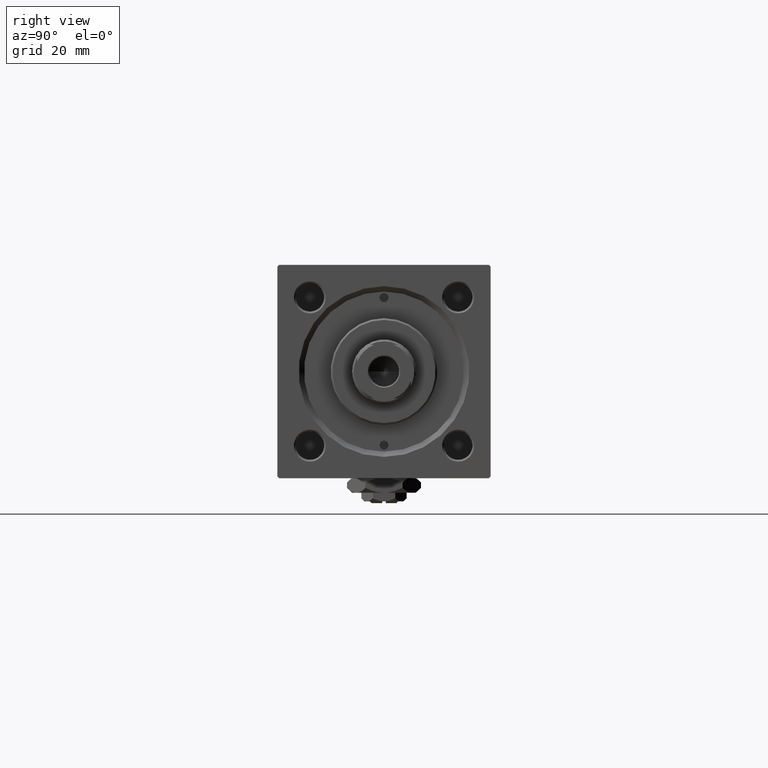
[diagram: clean part render]
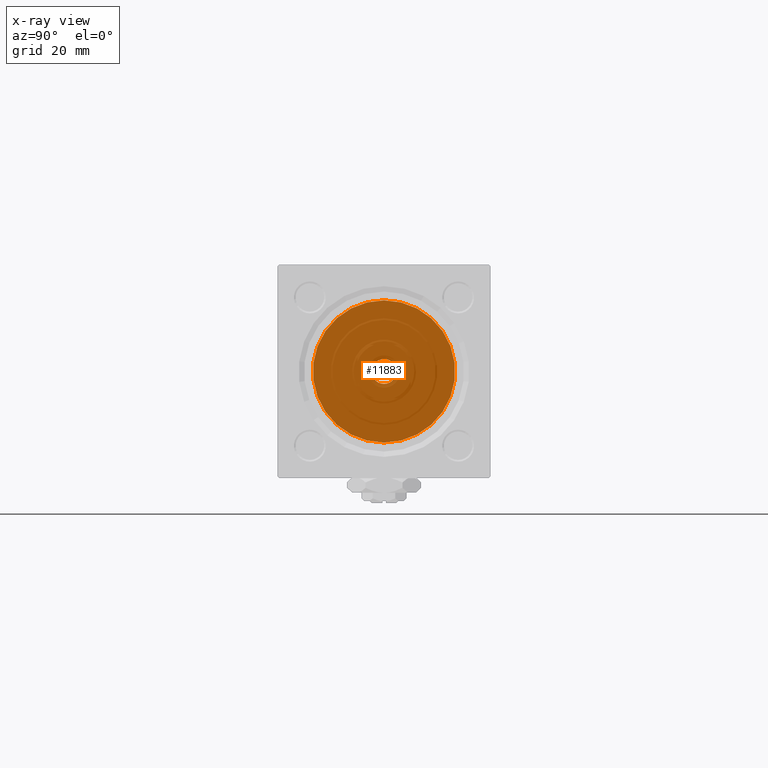
[diagram: x-ray — body ghosted, one internal face saturated and labeled with its STEP entity id]
A machine part, right view, then the same camera in x-ray: the body is ghosted and one INTERNAL B-rep face — a face not visible from any outside direction — is saturated and labeled: STEP entity #11883.
In plain terms, the highlighted planar face has unit normal (-1, 0, 0).
Its self-contained STEP definition (entity closure, byte-faithful):
#1075 = EDGE_CURVE ( 'NONE', #47124, #12476, #8902, .T. ) ;
#3314 = FACE_BOUND ( 'NONE', #17366, .T. ) ;
#3908 = CARTESIAN_POINT ( 'NONE',  ( 37.00000000000000711, 0.000000000000000000, 3.500000000000000000 ) ) ;
#3929 = DIRECTION ( 'NONE',  ( 0.000000000000000000, 0.000000000000000000, 1.000000000000000000 ) ) ;
#4667 = ORIENTED_EDGE ( 'NONE', *, *, #51053, .T. ) ;
#5747 = VERTEX_POINT ( 'NONE', #26731 ) ;
#6079 = VERTEX_POINT ( 'NONE', #7019 ) ;
#6472 = CARTESIAN_POINT ( 'NONE',  ( 37.00000000000000000, -2.602085213965210642E-15, 0.000000000000000000 ) ) ;
#6717 = AXIS2_PLACEMENT_3D ( 'NONE', #6472, #43557, #6741 ) ;
#6741 = DIRECTION ( 'NONE',  ( 0.000000000000000000, 0.000000000000000000, -1.000000000000000000 ) ) ;
#7019 = CARTESIAN_POINT ( 'NONE',  ( 37.00000000000000000, -1.527916156705046464E-16, -20.00000000000000000 ) ) ;
#8902 = CIRCLE ( 'NONE', #17337, 3.500000000000000000 ) ;
#11883 = ADVANCED_FACE ( 'NONE', ( #3314, #35140 ), #18959, .F. ) ;
#12476 = VERTEX_POINT ( 'NONE', #3908 ) ;
#12522 = DIRECTION ( 'NONE',  ( 0.000000000000000000, 0.000000000000000000, -1.000000000000000000 ) ) ;
#13900 = ORIENTED_EDGE ( 'NONE', *, *, #46444, .T. ) ;
#16125 = CARTESIAN_POINT ( 'NONE',  ( 37.00000000000000711, 0.000000000000000000, 0.000000000000000000 ) ) ;
#17337 = AXIS2_PLACEMENT_3D ( 'NONE', #16125, #44218, #3929 ) ;
#17366 = EDGE_LOOP ( 'NONE', ( #13900, #31891 ) ) ;
#18959 = PLANE ( 'NONE',  #19278 ) ;
#19278 = AXIS2_PLACEMENT_3D ( 'NONE', #47325, #19739, #27444 ) ;
#19545 = EDGE_CURVE ( 'NONE', #6079, #5747, #44836, .T. ) ;
#19739 = DIRECTION ( 'NONE',  ( -1.000000000000000000, 0.000000000000000000, -0.000000000000000000 ) ) ;
#26731 = CARTESIAN_POINT ( 'NONE',  ( 37.00000000000000000, -2.602085213965210642E-15, 20.00000000000000000 ) ) ;
#27444 = DIRECTION ( 'NONE',  ( -0.000000000000000000, 0.000000000000000000, 1.000000000000000000 ) ) ;
#30820 = CIRCLE ( 'NONE', #33374, 3.500000000000000000 ) ;
#31586 = DIRECTION ( 'NONE',  ( -1.000000000000000000, 0.000000000000000000, -0.000000000000000000 ) ) ;
#31891 = ORIENTED_EDGE ( 'NONE', *, *, #1075, .T. ) ;
#32943 = CARTESIAN_POINT ( 'NONE',  ( 37.00000000000000000, -2.602085213965210642E-15, 0.000000000000000000 ) ) ;
#33374 = AXIS2_PLACEMENT_3D ( 'NONE', #36370, #31586, #36098 ) ;
#34386 = CIRCLE ( 'NONE', #45405, 20.00000000000000000 ) ;
#35140 = FACE_OUTER_BOUND ( 'NONE', #45061, .T. ) ;
#36098 = DIRECTION ( 'NONE',  ( 0.000000000000000000, 0.000000000000000000, 1.000000000000000000 ) ) ;
#36370 = CARTESIAN_POINT ( 'NONE',  ( 37.00000000000000711, 0.000000000000000000, 0.000000000000000000 ) ) ;
#42687 = ORIENTED_EDGE ( 'NONE', *, *, #19545, .T. ) ;
#43557 = DIRECTION ( 'NONE',  ( 1.000000000000000000, 0.000000000000000000, 0.000000000000000000 ) ) ;
#44218 = DIRECTION ( 'NONE',  ( -1.000000000000000000, 0.000000000000000000, -0.000000000000000000 ) ) ;
#44836 = CIRCLE ( 'NONE', #6717, 20.00000000000000000 ) ;
#45061 = EDGE_LOOP ( 'NONE', ( #4667, #42687 ) ) ;
#45405 = AXIS2_PLACEMENT_3D ( 'NONE', #32943, #48819, #12522 ) ;
#46444 = EDGE_CURVE ( 'NONE', #12476, #47124, #30820, .T. ) ;
#47124 = VERTEX_POINT ( 'NONE', #48670 ) ;
#47325 = CARTESIAN_POINT ( 'NONE',  ( 37.00000000000000000, 0.000000000000000000, 0.000000000000000000 ) ) ;
#48670 = CARTESIAN_POINT ( 'NONE',  ( 37.00000000000000711, 4.286263797015736595E-16, -3.500000000000000000 ) ) ;
#48819 = DIRECTION ( 'NONE',  ( 1.000000000000000000, 0.000000000000000000, 0.000000000000000000 ) ) ;
#51053 = EDGE_CURVE ( 'NONE', #5747, #6079, #34386, .T. ) ;